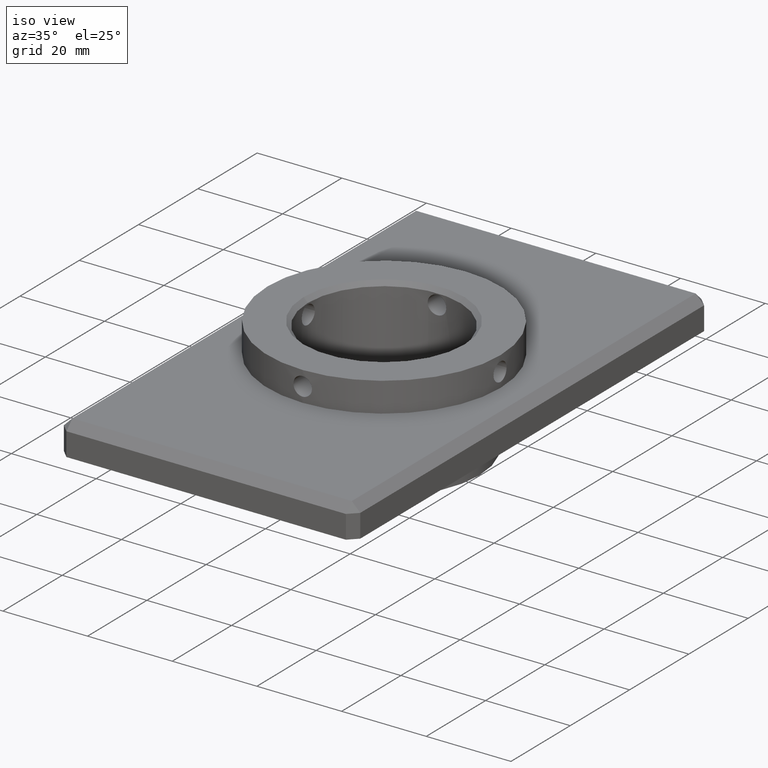
[diagram: clean part render]
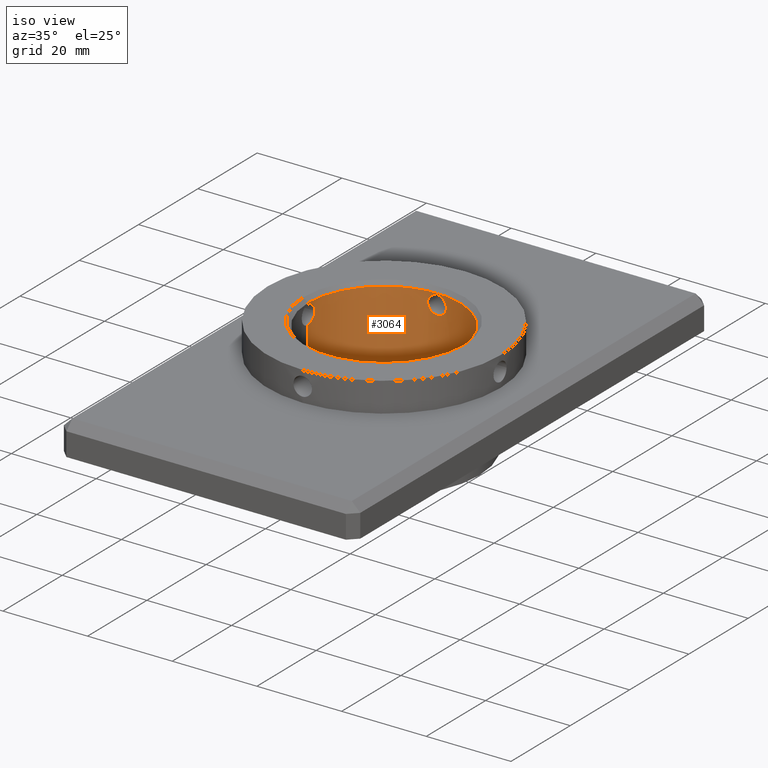
[diagram: same view with one face highlighted and labeled with its STEP entity id]
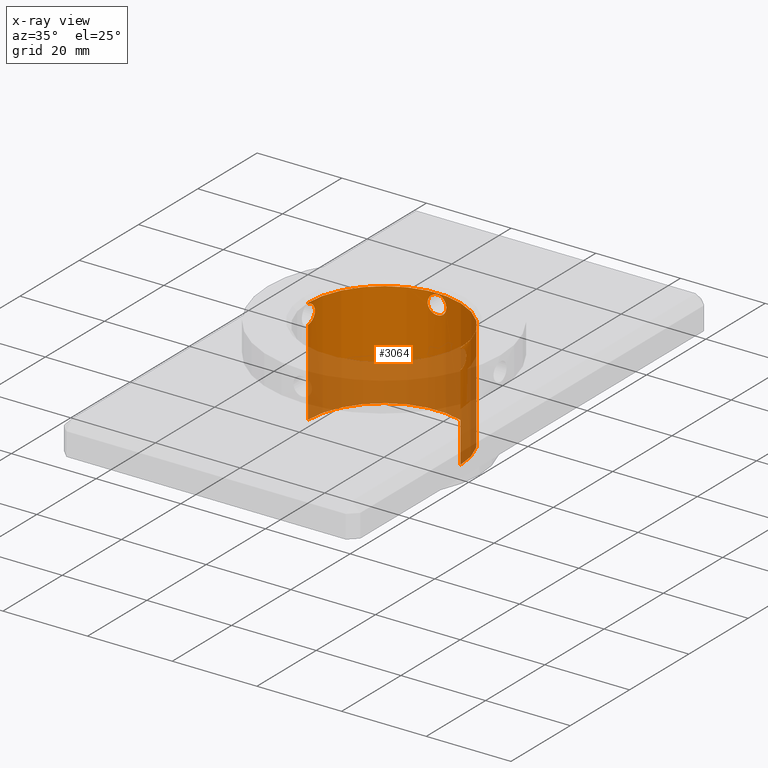
[diagram: x-ray of the same camera — body ghosted, the highlighted face saturated]
A machine part, iso view. The second image highlights one B-rep face of the part: STEP entity #3064.
The next image is the same camera in x-ray: the body ghosted, the highlighted face saturated — about 46% of this face is hidden behind the body in this view.
In plain terms, the highlighted cylindrical surface (partial cylindrical patch) has radius 18 mm, axis along (-0, -0, 1).
Its self-contained STEP definition (entity closure, byte-faithful):
#40 = EDGE_CURVE ( 'NONE', #17453, #15903, #538, .T. ) ;
#97 = CARTESIAN_POINT ( 'NONE',  ( -18.00000000000000000, 2.204364238465235428E-15, -12.50000000000001599 ) ) ;
#538 = B_SPLINE_CURVE_WITH_KNOTS ( 'NONE', 3,
 ( #2198, #16437, #7925, #17739, #3830, #6693, #9201, #688, #10627, #2122, #12053, #13496, #5003, #16862, #12377, #8342, #8284, #4122, #11121, #18241, #13925, #8164, #1253, #9764, #18297, #12440 ),
 .UNSPECIFIED., .F., .F.,
 ( 4, 2, 2, 2, 2, 2, 2, 2, 2, 2, 2, 2, 4 ),
 ( 0.006884636698897223482, 0.007745010746752491529, 0.008605384794607760443, 0.009035571818535394900, 0.009465758842463029357, 0.009895945866390663814, 0.01032613289031829654, 0.01075631991424593273, 0.01118650693817356545, 0.01161669396210119991, 0.01204688098602883436, 0.01290725503388410501, 0.01376762908173937566 ),
 .UNSPECIFIED. ) ;
#544 = EDGE_CURVE ( 'NONE', #1863, #16674, #13535, .T. ) ;
#602 = CARTESIAN_POINT ( 'NONE',  ( -17.86504967807255539, 2.199999999999935785, 9.999999999999991118 ) ) ;
#688 = CARTESIAN_POINT ( 'NONE',  ( -1.908637642199959350, 17.89870228920319306, 11.10350962024896226 ) ) ;
#742 = CARTESIAN_POINT ( 'NONE',  ( 1.977532309916197883, 17.89112765999268362, 10.97476628838665746 ) ) ;
#818 = ORIENTED_EDGE ( 'NONE', *, *, #9576, .F. ) ;
#919 = CARTESIAN_POINT ( 'NONE',  ( -17.96789707490261989, 1.106773159674762530, 11.92281156638730266 ) ) ;
#935 = CARTESIAN_POINT ( 'NONE',  ( 1.102446140427870702, 17.96660697357149417, 8.090739771115400103 ) ) ;
#1018 = CYLINDRICAL_SURFACE ( 'NONE', #9479, 18.00000000000000000 ) ;
#1097 = DIRECTION ( 'NONE',  ( 1.000000000000000000, 0.000000000000000000, 0.000000000000000000 ) ) ;
#1136 = VERTEX_POINT ( 'NONE', #4208 ) ;
#1157 = EDGE_CURVE ( 'NONE', #6576, #1863, #3301, .T. ) ;
#1253 = CARTESIAN_POINT ( 'NONE',  ( -1.109063378656533372, 17.96775200734797195, 8.078528616171238852 ) ) ;
#1255 = FACE_OUTER_BOUND ( 'NONE', #17803, .T. ) ;
#1325 = LINE ( 'NONE', #17031, #11311 ) ;
#1466 = ORIENTED_EDGE ( 'NONE', *, *, #10055, .F. ) ;
#1548 = CARTESIAN_POINT ( 'NONE',  ( 18.00000000000000000, 2.813669633697043857E-23, 12.19999999999999929 ) ) ;
#1774 = B_SPLINE_CURVE_WITH_KNOTS ( 'NONE', 3,
 ( #5704, #10089, #12891, #7188, #2835, #11450, #10032, #15775, #13004, #14448, #14377, #8665, #12827, #15826 ),
 .UNSPECIFIED., .F., .F.,
 ( 4, 2, 2, 2, 2, 2, 4 ),
 ( 0.01032769871745537263, 0.01075769001299087431, 0.01118768130852637599, 0.01161767260406187940, 0.01204766389959738108, 0.01290764649066838098, 0.01376762908173938087 ),
 .UNSPECIFIED. ) ;
#1863 = VERTEX_POINT ( 'NONE', #17743 ) ;
#2122 = CARTESIAN_POINT ( 'NONE',  ( -2.086930169408284463, 17.87869745132878663, 10.71099295024044551 ) ) ;
#2198 = CARTESIAN_POINT ( 'NONE',  ( 2.694222676761324588E-16, 18.00000000000000000, 12.19999999999999574 ) ) ;
#2304 = CARTESIAN_POINT ( 'NONE',  ( 0.2885521843271202092, 17.99823722750572585, 7.814292929745569438 ) ) ;
#2544 = CARTESIAN_POINT ( 'NONE',  ( 17.89864621095424368, 1.909162633179809054, 11.10260894792785535 ) ) ;
#2613 = CARTESIAN_POINT ( 'NONE',  ( 1.104013029738204255, 17.96650777086094664, 11.90831846378306125 ) ) ;
#2673 = CARTESIAN_POINT ( 'NONE',  ( 0.2895745473507717604, 17.99822402733702731, 12.18560063990894271 ) ) ;
#2835 = CARTESIAN_POINT ( 'NONE',  ( 17.87863036808950667, 2.087500648652109270, 9.290705091760747436 ) ) ;
#2890 = LINE ( 'NONE', #13842, #13117 ) ;
#3064 = ADVANCED_FACE ( 'NONE', ( #1255, #8147 ), #1018, .F. ) ;
#3229 = CARTESIAN_POINT ( 'NONE',  ( -18.00000000000000000, 2.724161555269461663E-15, 7.799999999999990941 ) ) ;
#3301 = B_SPLINE_CURVE_WITH_KNOTS ( 'NONE', 3,
 ( #6941, #18254, #9716, #15581, #12453, #13878, #5402, #18311, #11255, #15520, #9780, #11190, #12643, #15337 ),
 .UNSPECIFIED., .F., .F.,
 ( 4, 2, 2, 2, 2, 2, 4 ),
 ( 0.01032769178712296919, 0.01075768305061387299, 0.01118767431410477679, 0.01161766557759568060, 0.01204765684108658440, 0.01290763936806839027, 0.01376762189505019787 ),
 .UNSPECIFIED. ) ;
#3604 = CARTESIAN_POINT ( 'NONE',  ( -18.00000000000000000, 0.2873566920411770864, 12.19999999999998153 ) ) ;
#3620 = CARTESIAN_POINT ( 'NONE',  ( 1.749441115090188514, 17.91496191570163177, 11.34163430768545844 ) ) ;
#3650 = EDGE_CURVE ( 'NONE', #11274, #10239, #11692, .T. ) ;
#3737 = CARTESIAN_POINT ( 'NONE',  ( -18.00000000000000000, 2.204364266050439500E-15, 12.19999999999999218 ) ) ;
#3755 = CARTESIAN_POINT ( 'NONE',  ( 1.758678325507269991, 17.91503442989736072, 8.647490766544676077 ) ) ;
#3830 = CARTESIAN_POINT ( 'NONE',  ( -1.351668159138328607, 17.95033368697662013, 11.75932836552289729 ) ) ;
#4122 = CARTESIAN_POINT ( 'NONE',  ( -1.977659569751096136, 17.89111345441268952, 9.025504084350993494 ) ) ;
#4208 = CARTESIAN_POINT ( 'NONE',  ( -18.00000000000000000, 2.204364238465235428E-15, 12.50000000000000000 ) ) ;
#4563 = B_SPLINE_CURVE_WITH_KNOTS ( 'NONE', 3,
 ( #5381, #6794, #11048, #16734, #13977, #8221, #9622, #2544, #12486, #13913, #5430, #15371, #5486, #15664 ),
 .UNSPECIFIED., .F., .F.,
 ( 4, 2, 2, 2, 2, 2, 4 ),
 ( 0.006884636698897104654, 0.007745402203536672081, 0.008606167708176237774, 0.009036550460496022355, 0.009466933212815805201, 0.009897315965135589783, 0.01032769871745537263 ),
 .UNSPECIFIED. ) ;
#4962 = CARTESIAN_POINT ( 'NONE',  ( 0.000000000000000000, 0.000000000000000000, -12.50000000000001599 ) ) ;
#4975 = CARTESIAN_POINT ( 'NONE',  ( -17.87358901748853057, 2.129697431189301327, 10.57006677990117538 ) ) ;
#5003 = CARTESIAN_POINT ( 'NONE',  ( -2.199894404863504960, 17.86506268163218536, 10.14705398486795040 ) ) ;
#5021 = CARTESIAN_POINT ( 'NONE',  ( 1.399506180709882946E-17, 18.00000000000000000, 7.799999999999994493 ) ) ;
#5042 = CARTESIAN_POINT ( 'NONE',  ( -17.86682706078819649, 2.185700412771092616, 10.28861910465781193 ) ) ;
#5114 = CARTESIAN_POINT ( 'NONE',  ( -17.95029708004945235, 1.352149868914034325, 11.75896502183163506 ) ) ;
#5191 = CARTESIAN_POINT ( 'NONE',  ( 2.199894290870886948, 17.86506269567240679, 9.711909164860731636 ) ) ;
#5208 = CARTESIAN_POINT ( 'NONE',  ( 0.000000000000000000, 0.000000000000000000, 12.50000000000000000 ) ) ;
#5367 = DIRECTION ( 'NONE',  ( -0.000000000000000000, -0.000000000000000000, 1.000000000000000000 ) ) ;
#5381 = CARTESIAN_POINT ( 'NONE',  ( 18.00000000000000000, 2.813669633697043857E-23, 12.19999999999999929 ) ) ;
#5402 = CARTESIAN_POINT ( 'NONE',  ( -17.96664927720232185, 1.101753225063046182, 8.090345376463339733 ) ) ;
#5430 = CARTESIAN_POINT ( 'NONE',  ( 17.87358793198091433, 2.129706453405606048, 10.57002559599574631 ) ) ;
#5486 = CARTESIAN_POINT ( 'NONE',  ( 17.86504967807254118, 2.200000000000060130, 10.14551389793343716 ) ) ;
#5618 = ORIENTED_EDGE ( 'NONE', *, *, #18018, .F. ) ;
#5672 = AXIS2_PLACEMENT_3D ( 'NONE', #4962, #17695, #17765 ) ;
#5704 = CARTESIAN_POINT ( 'NONE',  ( 17.86504967807256605, 2.200000000000060574, 9.999999999999998224 ) ) ;
#6426 = VECTOR ( 'NONE', #17641, 1000.000000000000000 ) ;
#6576 = VERTEX_POINT ( 'NONE', #3229 ) ;
#6616 = CARTESIAN_POINT ( 'NONE',  ( 2.087871179710209191, 17.87858710636423965, 10.70823533565694241 ) ) ;
#6617 = ORIENTED_EDGE ( 'NONE', *, *, #40, .F. ) ;
#6685 = CARTESIAN_POINT ( 'NONE',  ( 0.9761269443294565695, 17.97400776311112125, 8.023141756280613990 ) ) ;
#6693 = CARTESIAN_POINT ( 'NONE',  ( -1.656049303776168324, 17.92394689444882161, 11.45535613545377096 ) ) ;
#6794 = CARTESIAN_POINT ( 'NONE',  ( 17.99999999999999645, 0.2873632867265606960, 12.20000000000000639 ) ) ;
#6829 = ORIENTED_EDGE ( 'NONE', *, *, #8958, .T. ) ;
#6874 = LINE ( 'NONE', #8979, #6426 ) ;
#6941 = CARTESIAN_POINT ( 'NONE',  ( -18.00000000000000000, 2.724161555269461663E-15, 7.799999999999990941 ) ) ;
#7188 = CARTESIAN_POINT ( 'NONE',  ( 17.87357336357803206, 2.129828136978313857, 9.430452160004598738 ) ) ;
#7472 = B_SPLINE_CURVE_WITH_KNOTS ( 'NONE', 3,
 ( #16552, #17911, #2304, #9192, #12243, #6685, #935, #17797, #8038, #3755, #13672, #13482, #5191, #15139, #12047, #9254, #6616, #742, #10679, #3620, #13554, #8152, #16736, #2613, #8223, #13799, #16684, #2673, #11167, #15493 ),
 .UNSPECIFIED., .F., .F.,
 ( 4, 2, 2, 2, 2, 2, 2, 2, 2, 2, 2, 2, 2, 2, 4 ),
 ( 1.359864454811138404E-20, 0.0004302897936810789613, 0.0008605795873621579226, 0.001290869381043236938, 0.001721159174724315845, 0.002581738762086469973, 0.003442318349448623884, 0.003872608143129698238, 0.004302897936810772157, 0.004733187730491848245, 0.005163477524172922599, 0.005593767317853997820, 0.006024057111535073041, 0.006454346905216148261, 0.006884636698897223482 ),
 .UNSPECIFIED. ) ;
#7925 = CARTESIAN_POINT ( 'NONE',  ( -0.5768990578402889424, 17.99270532125487776, 12.14226777985500938 ) ) ;
#8038 = CARTESIAN_POINT ( 'NONE',  ( 1.454586225319827397, 17.94141942356746711, 8.343275344872424171 ) ) ;
#8074 = CARTESIAN_POINT ( 'NONE',  ( -17.89121353140132697, 1.976758174817956126, 10.97633412027075472 ) ) ;
#8091 = EDGE_CURVE ( 'NONE', #15903, #17453, #7472, .T. ) ;
#8147 = FACE_BOUND ( 'NONE', #11396, .T. ) ;
#8152 = CARTESIAN_POINT ( 'NONE',  ( 1.453181400542387536, 17.94154049273430829, 11.65811121965273500 ) ) ;
#8164 = CARTESIAN_POINT ( 'NONE',  ( -1.354139152234927534, 17.95014346008993300, 8.242590481174840278 ) ) ;
#8171 = DIRECTION ( 'NONE',  ( -1.000000000000000000, 0.000000000000000000, 0.000000000000000000 ) ) ;
#8221 = CARTESIAN_POINT ( 'NONE',  ( 17.92389465666803616, 1.656615361930744434, 11.45471849210871618 ) ) ;
#8223 = CARTESIAN_POINT ( 'NONE',  ( 0.9753203632112069643, 17.97405155249512987, 11.97725464284748931 ) ) ;
#8284 = CARTESIAN_POINT ( 'NONE',  ( -2.087909400849417452, 17.87858250383232317, 9.291894077634344384 ) ) ;
#8342 = CARTESIAN_POINT ( 'NONE',  ( -2.130170281936233145, 17.87353247065607320, 9.431717298210866574 ) ) ;
#8363 = EDGE_CURVE ( 'NONE', #18133, #13243, #6874, .T. ) ;
#8665 = CARTESIAN_POINT ( 'NONE',  ( 17.99260939588000596, 0.5797305016892863039, 7.858525766434089732 ) ) ;
#8958 = EDGE_CURVE ( 'NONE', #13243, #1136, #16204, .T. ) ;
#8979 = CARTESIAN_POINT ( 'NONE',  ( 18.00000000000000000, 0.000000000000000000, -13.50000000000000533 ) ) ;
#9192 = CARTESIAN_POINT ( 'NONE',  ( 0.5699373129135683058, 17.99152514713530238, 7.870270153425786397 ) ) ;
#9201 = CARTESIAN_POINT ( 'NONE',  ( -1.748952996458347009, 17.91501059734348544, 11.34230940821555045 ) ) ;
#9233 = CARTESIAN_POINT ( 'NONE',  ( 18.00000000000000000, 0.000000000000000000, -12.50000000000001599 ) ) ;
#9254 = CARTESIAN_POINT ( 'NONE',  ( 2.129469352598356569, 17.87361638216386339, 10.57102575612056405 ) ) ;
#9416 = CARTESIAN_POINT ( 'NONE',  ( 0.000000000000000000, 0.000000000000000000, -13.50000000000000533 ) ) ;
#9430 = CARTESIAN_POINT ( 'NONE',  ( -17.91496922633712430, 1.749378303981301119, 11.34177030915876472 ) ) ;
#9479 = AXIS2_PLACEMENT_3D ( 'NONE', #9416, #10950, #1097 ) ;
#9576 = EDGE_CURVE ( 'NONE', #11274, #6576, #14846, .T. ) ;
#9622 = CARTESIAN_POINT ( 'NONE',  ( 17.91495539750861710, 1.749517433498123165, 11.34158011384589315 ) ) ;
#9716 = CARTESIAN_POINT ( 'NONE',  ( -17.99824021636281657, 0.2883259539657601067, 7.814268785224589564 ) ) ;
#9764 = CARTESIAN_POINT ( 'NONE',  ( -0.5799910249153412689, 17.99260248508959137, 7.858578913952814382 ) ) ;
#9780 = CARTESIAN_POINT ( 'NONE',  ( -17.89746396738225442, 1.921721143295166856, 8.891403756792255919 ) ) ;
#9962 = CARTESIAN_POINT ( 'NONE',  ( 17.86504967807256605, 2.200000000000060574, 9.999999999999998224 ) ) ;
#10032 = CARTESIAN_POINT ( 'NONE',  ( 17.89859310728108355, 1.909657467179324941, 8.898251813286858436 ) ) ;
#10054 = ORIENTED_EDGE ( 'NONE', *, *, #3650, .T. ) ;
#10055 = EDGE_CURVE ( 'NONE', #16674, #1136, #1325, .T. ) ;
#10089 = CARTESIAN_POINT ( 'NONE',  ( 17.86504967807253763, 2.200000000000060574, 9.854618454959990004 ) ) ;
#10239 = VERTEX_POINT ( 'NONE', #9233 ) ;
#10315 = CARTESIAN_POINT ( 'NONE',  ( 18.00000000000000000, -8.956061793814449642E-16, 7.799999999999998046 ) ) ;
#10584 = CARTESIAN_POINT ( 'NONE',  ( 18.00000000000000000, 0.000000000000000000, 12.50000000000000000 ) ) ;
#10627 = CARTESIAN_POINT ( 'NONE',  ( -1.976284858971961711, 17.89126597656899520, 10.97728535417055973 ) ) ;
#10662 = CARTESIAN_POINT ( 'NONE',  ( -17.92390634684751305, 1.656487217562602421, 11.45485975339871665 ) ) ;
#10679 = CARTESIAN_POINT ( 'NONE',  ( 1.908670826532613995, 17.89869772726917674, 11.10340496041568947 ) ) ;
#10910 = CARTESIAN_POINT ( 'NONE',  ( -17.99269686060980433, 0.5771757128231141953, 12.14219965067134765 ) ) ;
#10950 = DIRECTION ( 'NONE',  ( -0.000000000000000000, -0.000000000000000000, 1.000000000000000000 ) ) ;
#11048 = CARTESIAN_POINT ( 'NONE',  ( 17.99269845819464209, 0.5771595703362157881, 12.14221504229825044 ) ) ;
#11121 = CARTESIAN_POINT ( 'NONE',  ( -1.910181812680249669, 17.89853706650791665, 8.899153326929468477 ) ) ;
#11167 = CARTESIAN_POINT ( 'NONE',  ( 0.1436506094756488661, 18.00000000000000711, 12.20000000000000107 ) ) ;
#11189 = DIRECTION ( 'NONE',  ( -0.000000000000000000, -0.000000000000000000, 1.000000000000000000 ) ) ;
#11190 = CARTESIAN_POINT ( 'NONE',  ( -17.87250171077296912, 2.141474075199391258, 9.420270262716428533 ) ) ;
#11255 = CARTESIAN_POINT ( 'NONE',  ( -17.94148444521033881, 1.453782261044804569, 8.342579395840770573 ) ) ;
#11274 = VERTEX_POINT ( 'NONE', #97 ) ;
#11311 = VECTOR ( 'NONE', #18478, 1000.000000000000000 ) ;
#11396 = EDGE_LOOP ( 'NONE', ( #17337, #6617 ) ) ;
#11450 = CARTESIAN_POINT ( 'NONE',  ( 17.89116826695707374, 1.977164849051144868, 9.024511719878876903 ) ) ;
#11692 = CIRCLE ( 'NONE', #5672, 18.00000000000000000 ) ;
#11741 = EDGE_CURVE ( 'NONE', #10239, #14847, #2890, .T. ) ;
#11758 = AXIS2_PLACEMENT_3D ( 'NONE', #5208, #13755, #8171 ) ;
#12047 = CARTESIAN_POINT ( 'NONE',  ( 2.185710727120722119, 17.86682598890361362, 10.28875379678565949 ) ) ;
#12053 = CARTESIAN_POINT ( 'NONE',  ( -2.129363401130567546, 17.87362892432831529, 10.57128992861301775 ) ) ;
#12243 = CARTESIAN_POINT ( 'NONE',  ( 0.7097445855791326697, 17.98649608742808681, 7.912644028813396346 ) ) ;
#12377 = CARTESIAN_POINT ( 'NONE',  ( -2.185922486190558178, 17.86679969367787635, 9.713096630268070797 ) ) ;
#12440 = CARTESIAN_POINT ( 'NONE',  ( 1.399506180709882946E-17, 18.00000000000000000, 7.799999999999994493 ) ) ;
#12453 = CARTESIAN_POINT ( 'NONE',  ( -17.98651306451688114, 0.7092966243764927681, 7.912499841973080095 ) ) ;
#12486 = CARTESIAN_POINT ( 'NONE',  ( 17.89121109035081147, 1.976780470894358155, 10.97629352677953207 ) ) ;
#12643 = CARTESIAN_POINT ( 'NONE',  ( -17.86504967807255539, 2.199999999999935341, 9.709190427480567820 ) ) ;
#12827 = CARTESIAN_POINT ( 'NONE',  ( 18.00000000000000355, 0.2908091080977502907, 7.799999999999987388 ) ) ;
#12891 = CARTESIAN_POINT ( 'NONE',  ( 17.86682322784958288, 2.185731095319220163, 9.711673424633467278 ) ) ;
#13004 = CARTESIAN_POINT ( 'NONE',  ( 17.92381854039586742, 1.657426382435922996, 8.546224366329603583 ) ) ;
#13117 = VECTOR ( 'NONE', #5367, 1000.000000000000000 ) ;
#13243 = VERTEX_POINT ( 'NONE', #10584 ) ;
#13327 = CARTESIAN_POINT ( 'NONE',  ( 2.694222676761324588E-16, 18.00000000000000000, 12.19999999999999574 ) ) ;
#13482 = CARTESIAN_POINT ( 'NONE',  ( 2.142015114782034324, 17.87243602517794727, 9.422174690376008854 ) ) ;
#13496 = CARTESIAN_POINT ( 'NONE',  ( -2.185503738517026839, 17.86685122867450914, 10.29005876221397386 ) ) ;
#13535 = B_SPLINE_CURVE_WITH_KNOTS ( 'NONE', 3,
 ( #602, #14983, #5042, #4975, #13597, #8074, #14927, #9430, #10662, #5114, #919, #10910, #3604, #3737 ),
 .UNSPECIFIED., .F., .F.,
 ( 4, 2, 2, 2, 2, 2, 4 ),
 ( 0.000000000000000000, 0.0004303903560822025737, 0.0008607807121644051474, 0.001291171068246607613, 0.001721561424328810295, 0.002582342136493214358, 0.003443122848657618855 ),
 .UNSPECIFIED. ) ;
#13554 = CARTESIAN_POINT ( 'NONE',  ( 1.658434019993305641, 17.92373309432597850, 11.45281299586335777 ) ) ;
#13597 = CARTESIAN_POINT ( 'NONE',  ( -17.87865370635583062, 2.087303561084554726, 10.70990495138307708 ) ) ;
#13672 = CARTESIAN_POINT ( 'NONE',  ( 1.922536360882166617, 17.89737556646558403, 8.892767060875303997 ) ) ;
#13755 = DIRECTION ( 'NONE',  ( 0.000000000000000000, 0.000000000000000000, 1.000000000000000000 ) ) ;
#13799 = CARTESIAN_POINT ( 'NONE',  ( 0.7089363739843310697, 17.98652796512681462, 12.08762902623965552 ) ) ;
#13842 = CARTESIAN_POINT ( 'NONE',  ( 18.00000000000000000, 0.000000000000000000, -13.50000000000000533 ) ) ;
#13878 = CARTESIAN_POINT ( 'NONE',  ( -17.97404152278934575, 0.9754923159272795852, 8.022837044479873114 ) ) ;
#13913 = CARTESIAN_POINT ( 'NONE',  ( 17.87864945645356940, 2.087340155042630929, 10.70980360501166828 ) ) ;
#13925 = CARTESIAN_POINT ( 'NONE',  ( -1.657991388526622867, 17.92376635436670185, 8.546862077884627595 ) ) ;
#13977 = CARTESIAN_POINT ( 'NONE',  ( 17.95029409383699459, 1.352197628910686955, 11.75894370775179887 ) ) ;
#14139 = EDGE_CURVE ( 'NONE', #16196, #14847, #1774, .T. ) ;
#14196 = ORIENTED_EDGE ( 'NONE', *, *, #8363, .T. ) ;
#14377 = CARTESIAN_POINT ( 'NONE',  ( 17.96777901029949476, 1.108601715829148349, 8.078281606666488202 ) ) ;
#14448 = CARTESIAN_POINT ( 'NONE',  ( 17.95018310061417566, 1.353609908119517424, 8.242204948910822893 ) ) ;
#14629 = ORIENTED_EDGE ( 'NONE', *, *, #11741, .T. ) ;
#14846 = LINE ( 'NONE', #15757, #16849 ) ;
#14847 = VERTEX_POINT ( 'NONE', #10315 ) ;
#14927 = CARTESIAN_POINT ( 'NONE',  ( -17.89864980213137358, 1.909131240043267841, 11.10267398684802664 ) ) ;
#14983 = CARTESIAN_POINT ( 'NONE',  ( -17.86504967807255895, 2.199999999999935341, 10.14553974242710410 ) ) ;
#15074 = ORIENTED_EDGE ( 'NONE', *, *, #1157, .F. ) ;
#15139 = CARTESIAN_POINT ( 'NONE',  ( 2.200052631787999591, 17.86504319670654084, 10.14283284789249251 ) ) ;
#15206 = ORIENTED_EDGE ( 'NONE', *, *, #544, .F. ) ;
#15337 = CARTESIAN_POINT ( 'NONE',  ( -17.86504967807255539, 2.199999999999935785, 9.999999999999991118 ) ) ;
#15371 = CARTESIAN_POINT ( 'NONE',  ( 17.86682755980014647, 2.185696247948792248, 10.28863587696330484 ) ) ;
#15493 = CARTESIAN_POINT ( 'NONE',  ( 2.694222676761324588E-16, 18.00000000000000000, 12.19999999999999574 ) ) ;
#15520 = CARTESIAN_POINT ( 'NONE',  ( -17.91511994240790528, 1.757801265829290305, 8.646397991900979463 ) ) ;
#15581 = CARTESIAN_POINT ( 'NONE',  ( -17.99153682787057207, 0.5695483412377125854, 7.870171958592145245 ) ) ;
#15664 = CARTESIAN_POINT ( 'NONE',  ( 17.86504967807256605, 2.200000000000060574, 9.999999999999998224 ) ) ;
#15757 = CARTESIAN_POINT ( 'NONE',  ( -18.00000000000000000, 2.204364238465235428E-15, -13.50000000000000533 ) ) ;
#15775 = CARTESIAN_POINT ( 'NONE',  ( 17.91489302995655208, 1.750152732528736266, 8.659251656088427396 ) ) ;
#15826 = CARTESIAN_POINT ( 'NONE',  ( 18.00000000000000000, -8.956061793814449642E-16, 7.799999999999998046 ) ) ;
#15903 = VERTEX_POINT ( 'NONE', #5021 ) ;
#16196 = VERTEX_POINT ( 'NONE', #9962 ) ;
#16204 = CIRCLE ( 'NONE', #11758, 18.00000000000000000 ) ;
#16437 = CARTESIAN_POINT ( 'NONE',  ( -0.2872326003694267160, 18.00000000000000000, 12.19999999999999218 ) ) ;
#16552 = CARTESIAN_POINT ( 'NONE',  ( 1.399506180709882946E-17, 18.00000000000000000, 7.799999999999994493 ) ) ;
#16672 = CARTESIAN_POINT ( 'NONE',  ( -18.00000000000000000, 2.204364266050439500E-15, 12.19999999999999218 ) ) ;
#16674 = VERTEX_POINT ( 'NONE', #16672 ) ;
#16684 = CARTESIAN_POINT ( 'NONE',  ( 0.5717812233671876188, 17.99146986183424346, 12.12926508642031109 ) ) ;
#16734 = CARTESIAN_POINT ( 'NONE',  ( 17.96789013726768047, 1.106903334636441860, 11.92274893442965400 ) ) ;
#16736 = CARTESIAN_POINT ( 'NONE',  ( 1.342176611951217735, 17.95028713398673048, 11.74902431983612239 ) ) ;
#16791 = ORIENTED_EDGE ( 'NONE', *, *, #14139, .F. ) ;
#16849 = VECTOR ( 'NONE', #11189, 1000.000000000000000 ) ;
#16862 = CARTESIAN_POINT ( 'NONE',  ( -2.200104448408848334, 17.86503681572719771, 9.856122680359623800 ) ) ;
#17031 = CARTESIAN_POINT ( 'NONE',  ( -18.00000000000000000, 2.204364238465235428E-15, -13.50000000000000533 ) ) ;
#17337 = ORIENTED_EDGE ( 'NONE', *, *, #8091, .F. ) ;
#17453 = VERTEX_POINT ( 'NONE', #13327 ) ;
#17641 = DIRECTION ( 'NONE',  ( -0.000000000000000000, -0.000000000000000000, 1.000000000000000000 ) ) ;
#17695 = DIRECTION ( 'NONE',  ( -0.000000000000000000, -0.000000000000000000, -1.000000000000000000 ) ) ;
#17739 = CARTESIAN_POINT ( 'NONE',  ( -1.106441073767364447, 17.96791711497833077, 11.92299555741100114 ) ) ;
#17743 = CARTESIAN_POINT ( 'NONE',  ( -17.86504967807255539, 2.199999999999935785, 9.999999999999991118 ) ) ;
#17765 = DIRECTION ( 'NONE',  ( 1.000000000000000000, 0.000000000000000000, 0.000000000000000000 ) ) ;
#17797 = CARTESIAN_POINT ( 'NONE',  ( 1.341506663305142677, 17.95034020590250989, 8.250422340548240641 ) ) ;
#17803 = EDGE_LOOP ( 'NONE', ( #818, #10054, #14629, #16791, #5618, #14196, #6829, #1466, #15206, #15074 ) ) ;
#17911 = CARTESIAN_POINT ( 'NONE',  ( 0.1455054932776279897, 18.00000000000000355, 7.799999999999994493 ) ) ;
#18018 = EDGE_CURVE ( 'NONE', #18133, #16196, #4563, .T. ) ;
#18133 = VERTEX_POINT ( 'NONE', #1548 ) ;
#18241 = CARTESIAN_POINT ( 'NONE',  ( -1.750717080802109304, 17.91483779947894917, 8.659982217247618408 ) ) ;
#18254 = CARTESIAN_POINT ( 'NONE',  ( -18.00000000000000000, 0.1453808865314435428, 7.799999999999996270 ) ) ;
#18297 = CARTESIAN_POINT ( 'NONE',  ( -0.2909414819381899164, 18.00000000000001421, 7.799999999999995381 ) ) ;
#18311 = CARTESIAN_POINT ( 'NONE',  ( -17.95039621641852179, 1.340754299832369822, 8.249851761246286941 ) ) ;
#18478 = DIRECTION ( 'NONE',  ( -0.000000000000000000, -0.000000000000000000, 1.000000000000000000 ) ) ;